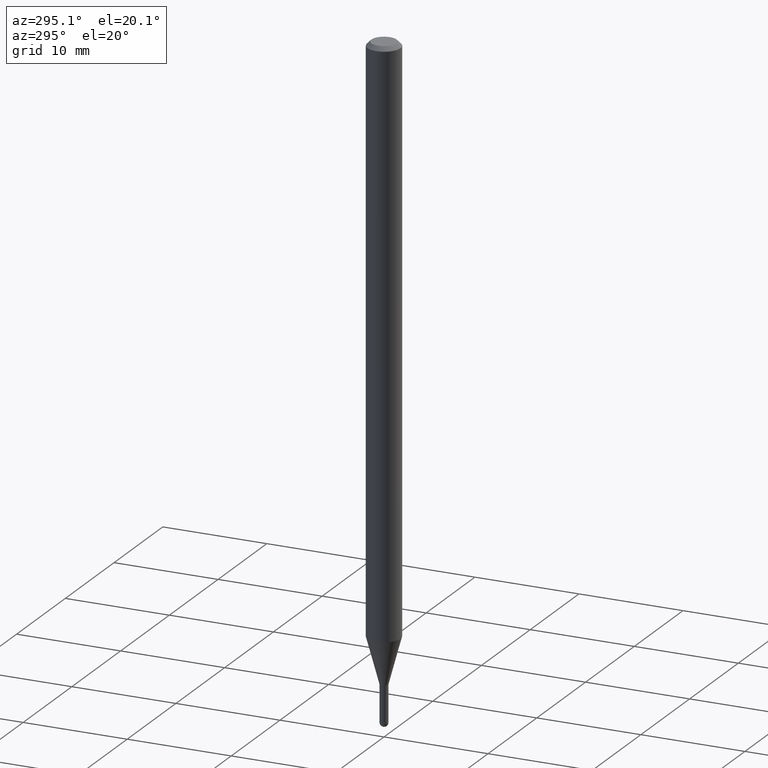
[diagram: clean part render]
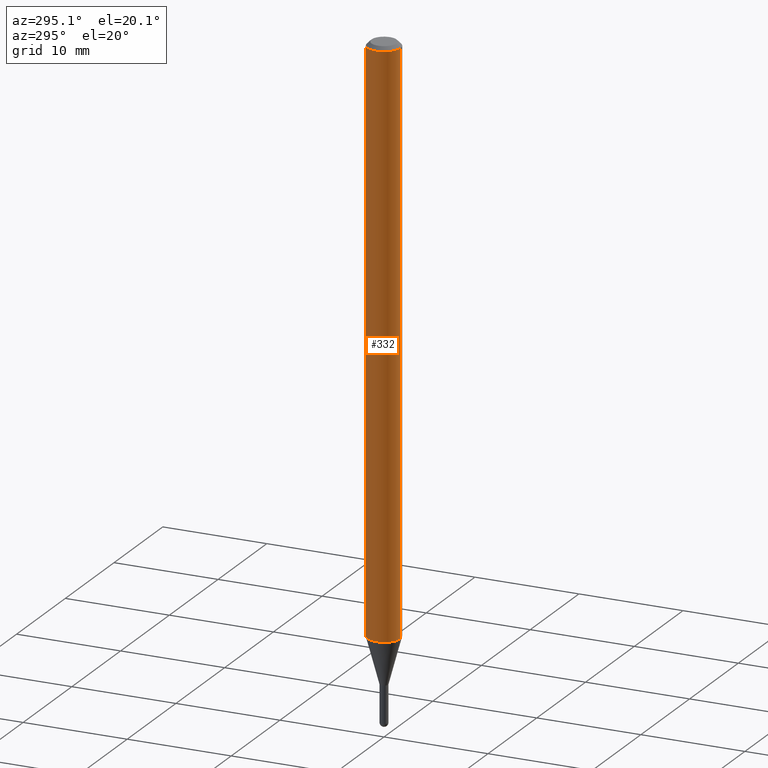
[diagram: same view with one face highlighted and labeled with its STEP entity id]
A machine part, auxiliary view. The second image highlights one B-rep face of the part: STEP entity #332.
In plain terms, the highlighted cylindrical surface (edge-blend (fillet) strip) has radius 1.5875 mm, axis along (-0, 0, 1).
Its self-contained STEP definition (entity closure, byte-faithful):
#3 = DIRECTION ( 'NONE',  ( -2.445469388235828600E-29, 3.491480505313426266E-15, 1.000000000000000000 ) ) ;
#8 = CYLINDRICAL_SURFACE ( 'NONE', #306, 0.06250000000000000000 ) ;
#9 = ORIENTED_EDGE ( 'NONE', *, *, #347, .T. ) ;
#78 = DIRECTION ( 'NONE',  ( -2.445469388235828600E-29, 3.491480505313426266E-15, 1.000000000000000000 ) ) ;
#82 = CARTESIAN_POINT ( 'NONE',  ( 4.440892098501160615E-16, 0.06249999999999995837, -0.01500000000000022669 ) ) ;
#95 = CIRCLE ( 'NONE', #449, 0.06250000000000000000 ) ;
#98 = VERTEX_POINT ( 'NONE', #186 ) ;
#134 = DIRECTION ( 'NONE',  ( -2.445469388235828600E-29, 3.491480505313426266E-15, 1.000000000000000000 ) ) ;
#186 = CARTESIAN_POINT ( 'NONE',  ( -4.364351673553912750E-16, -0.06250000000000005551, -0.01499999999999979128 ) ) ;
#194 = DIRECTION ( 'NONE',  ( -2.445469388235828600E-29, 3.491480505313426266E-15, 1.000000000000000000 ) ) ;
#196 = ORIENTED_EDGE ( 'NONE', *, *, #344, .F. ) ;
#202 = DIRECTION ( 'NONE',  ( -6.982962677686265922E-15, -1.000000000000000000, 4.370956789862821150E-15 ) ) ;
#216 = VERTEX_POINT ( 'NONE', #483 ) ;
#218 = VECTOR ( 'NONE', #194, 39.37007874015748143 ) ;
#222 = LINE ( 'NONE', #353, #494 ) ;
#264 = EDGE_CURVE ( 'NONE', #335, #216, #95, .T. ) ;
#281 = VERTEX_POINT ( 'NONE', #82 ) ;
#284 = DIRECTION ( 'NONE',  ( -6.982962677686265922E-15, -1.000000000000000000, 3.491480505313426266E-15 ) ) ;
#304 = DIRECTION ( 'NONE',  ( -6.982962677686265922E-15, -1.000000000000000000, 3.483106191921935554E-15 ) ) ;
#306 = AXIS2_PLACEMENT_3D ( 'NONE', #485, #134, #284 ) ;
#309 = CARTESIAN_POINT ( 'NONE',  ( 3.668204082353745160E-31, -5.237220757970142554E-17, -0.01500000000000000812 ) ) ;
#323 = ORIENTED_EDGE ( 'NONE', *, *, #264, .T. ) ;
#327 = FACE_OUTER_BOUND ( 'NONE', #452, .T. ) ;
#332 = ADVANCED_FACE ( 'NONE', ( #327 ), #8, .T. ) ;
#335 = VERTEX_POINT ( 'NONE', #416 ) ;
#344 = EDGE_CURVE ( 'NONE', #335, #281, #386, .T. ) ;
#347 = EDGE_CURVE ( 'NONE', #216, #98, #222, .T. ) ;
#353 = CARTESIAN_POINT ( 'NONE',  ( -4.364351673553916201E-16, -0.06250000000000000000, 2.182175315820891416E-16 ) ) ;
#357 = DIRECTION ( 'NONE',  ( -2.445469388235828600E-29, 3.491480505313426266E-15, 1.000000000000000000 ) ) ;
#358 = CARTESIAN_POINT ( 'NONE',  ( 5.305674763166256692E-29, -7.575093800905100250E-15, -2.169593612044267594 ) ) ;
#386 = LINE ( 'NONE', #389, #218 ) ;
#389 = CARTESIAN_POINT ( 'NONE',  ( 4.440892098500625669E-16, 0.06250000000000000000, -2.182175315820891416E-16 ) ) ;
#393 = EDGE_CURVE ( 'NONE', #281, #98, #429, .T. ) ;
#399 = ORIENTED_EDGE ( 'NONE', *, *, #393, .F. ) ;
#416 = CARTESIAN_POINT ( 'NONE',  ( 4.440892098501153712E-16, 0.06249999999999240191, -2.169593612044267594 ) ) ;
#429 = CIRCLE ( 'NONE', #467, 0.06250000000000000000 ) ;
#449 = AXIS2_PLACEMENT_3D ( 'NONE', #358, #3, #202 ) ;
#452 = EDGE_LOOP ( 'NONE', ( #196, #323, #9, #399 ) ) ;
#467 = AXIS2_PLACEMENT_3D ( 'NONE', #309, #78, #304 ) ;
#483 = CARTESIAN_POINT ( 'NONE',  ( -4.364351673553386678E-16, -0.06250000000000759115, -2.169593612044267150 ) ) ;
#485 = CARTESIAN_POINT ( 'NONE',  ( 0.000000000000000000, 0.000000000000000000, 0.000000000000000000 ) ) ;
#494 = VECTOR ( 'NONE', #357, 39.37007874015748143 ) ;